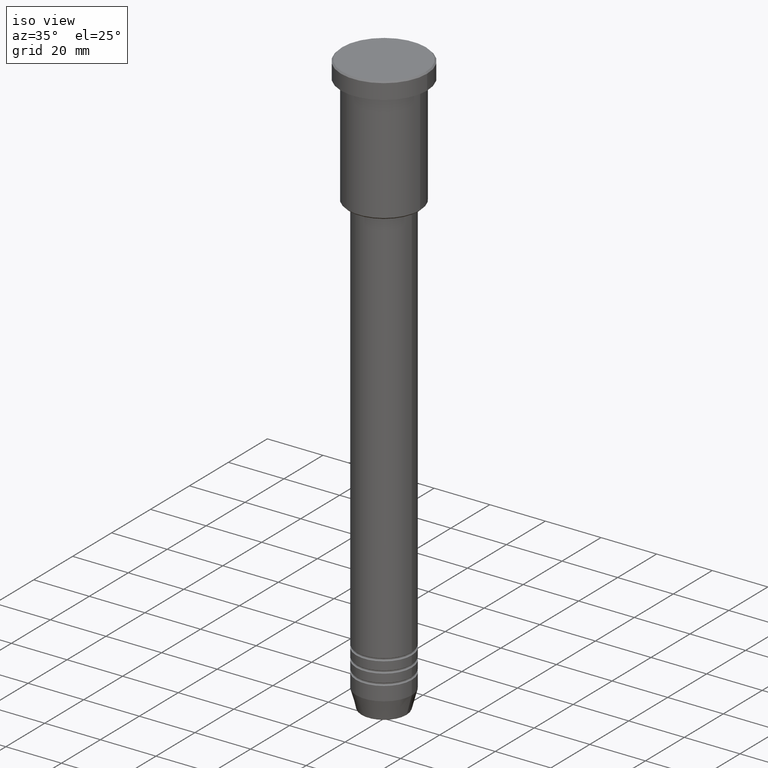
[diagram: clean part render]
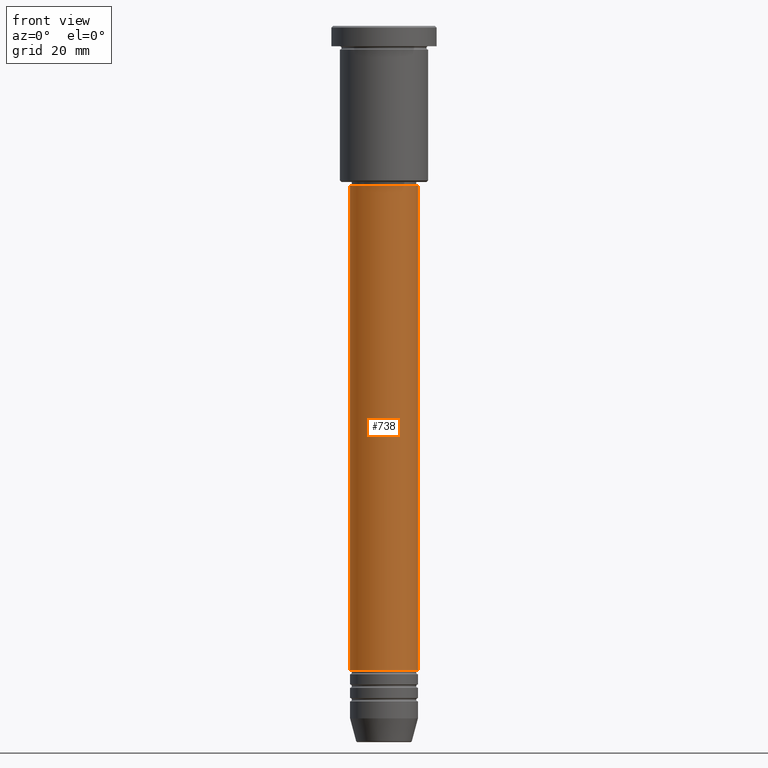
[diagram: tour spotlight — one face highlighted and labeled with its STEP entity id]
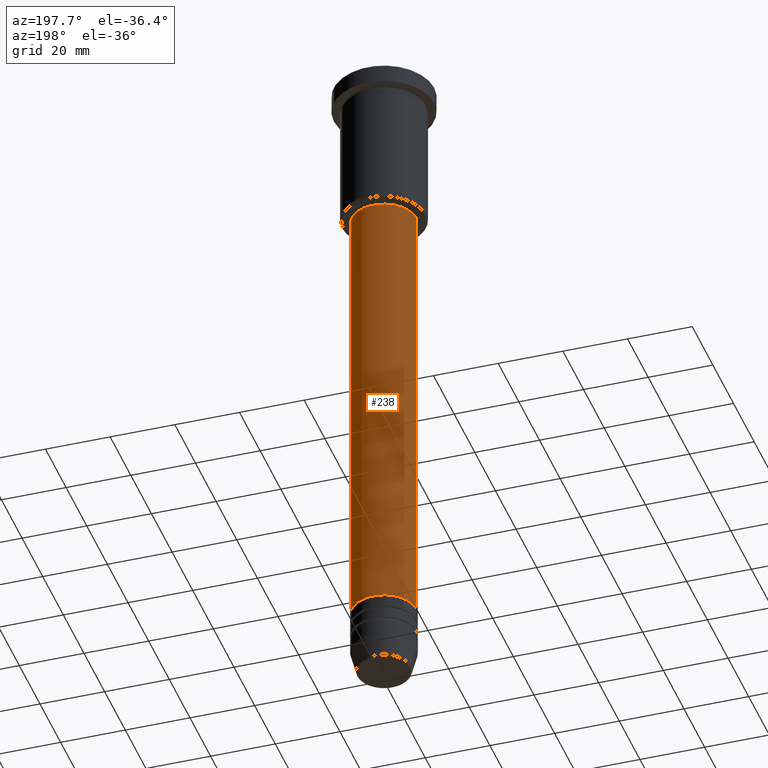
[diagram: tour spotlight — one face highlighted and labeled with its STEP entity id]
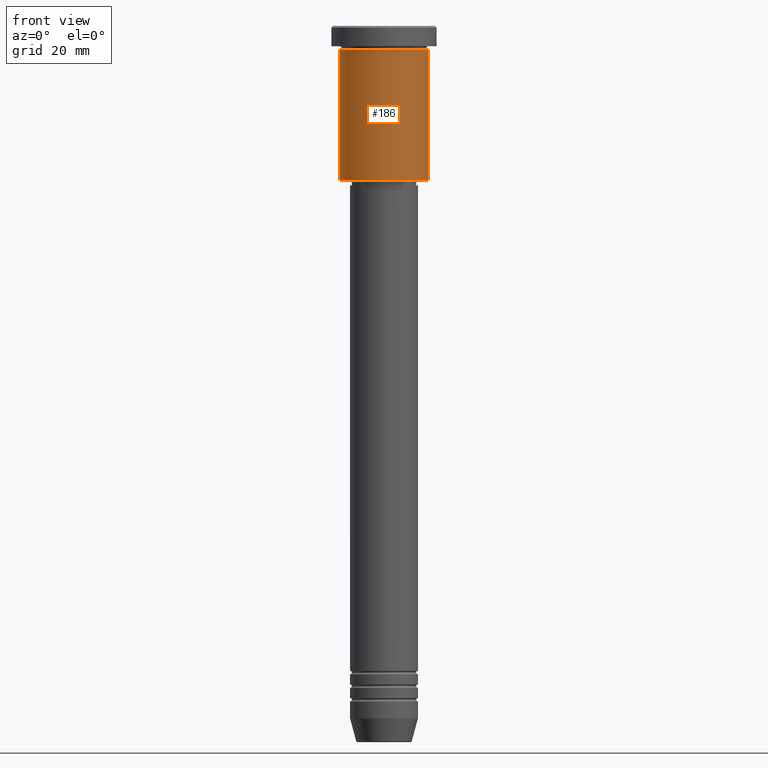
[diagram: tour spotlight — one face highlighted and labeled with its STEP entity id]
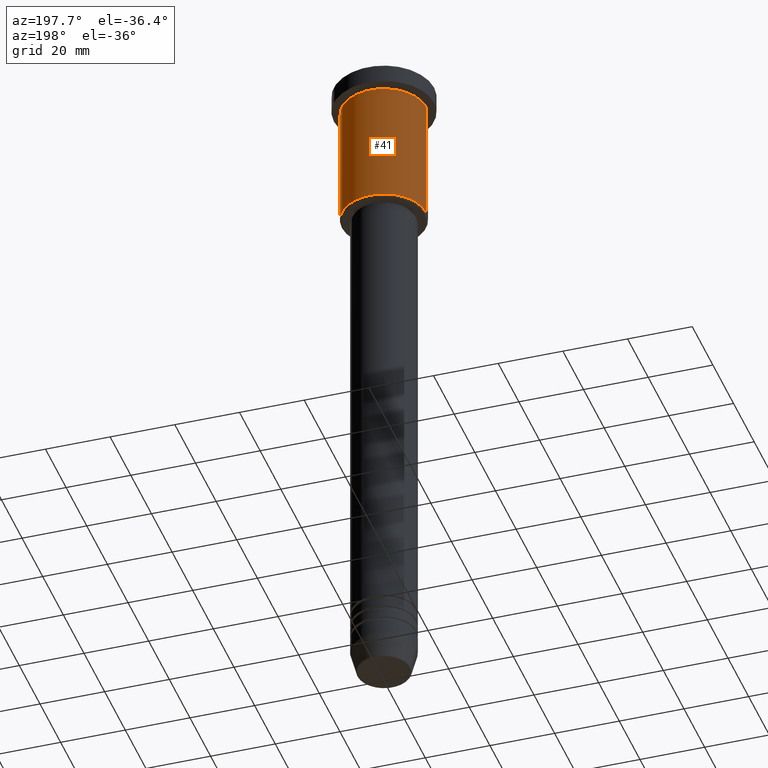
[diagram: tour spotlight — one face highlighted and labeled with its STEP entity id]
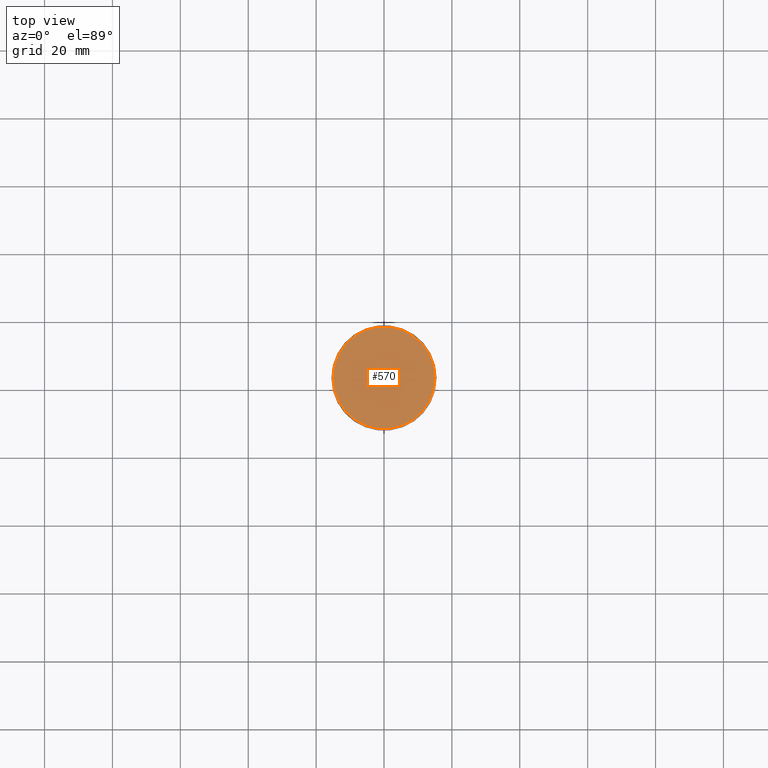
[diagram: tour spotlight — one face highlighted and labeled with its STEP entity id]
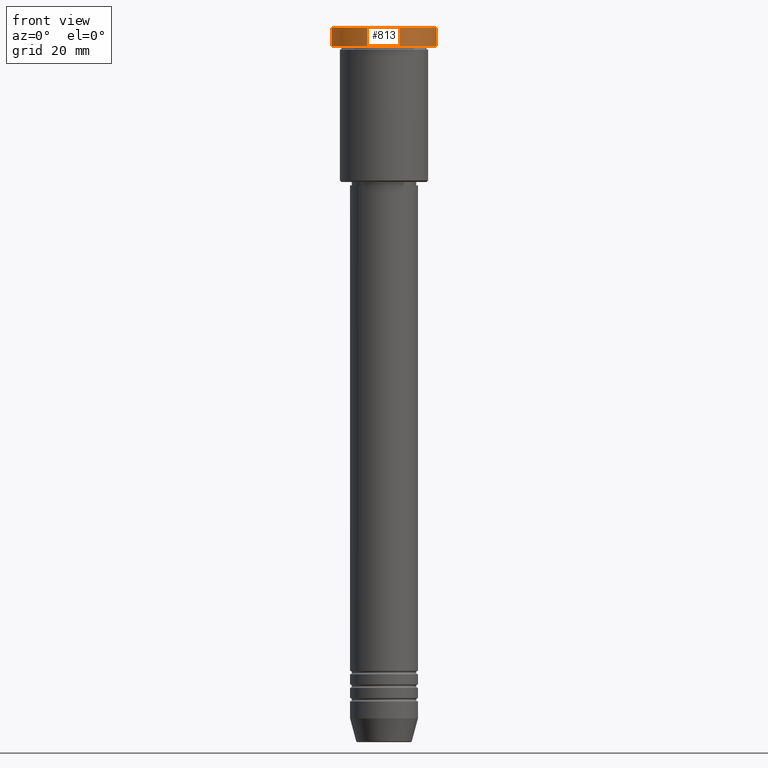
[diagram: tour spotlight — one face highlighted and labeled with its STEP entity id]
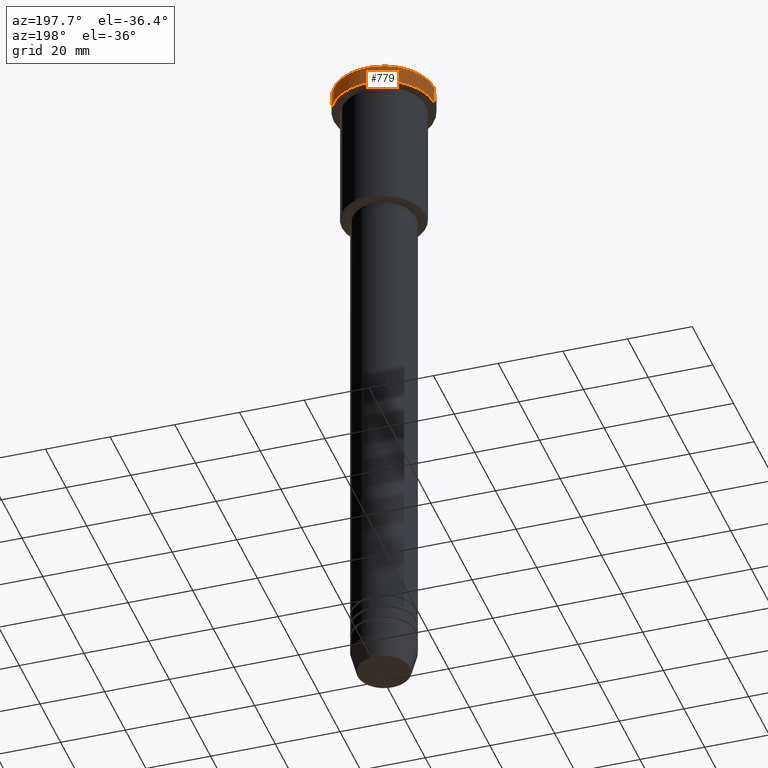
[diagram: tour spotlight — one face highlighted and labeled with its STEP entity id]
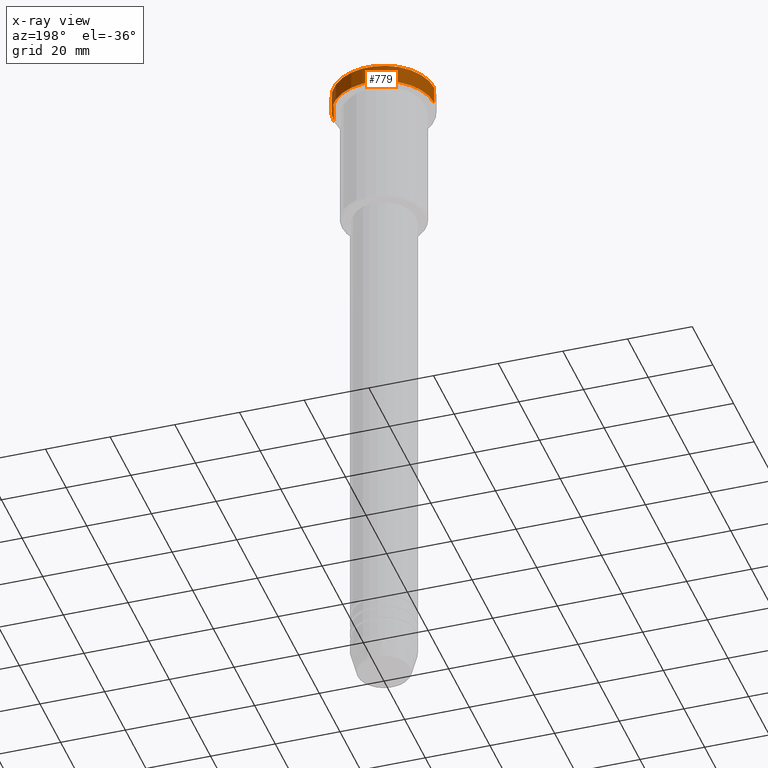
[diagram: x-ray of the same camera — body ghosted, this tour face saturated]
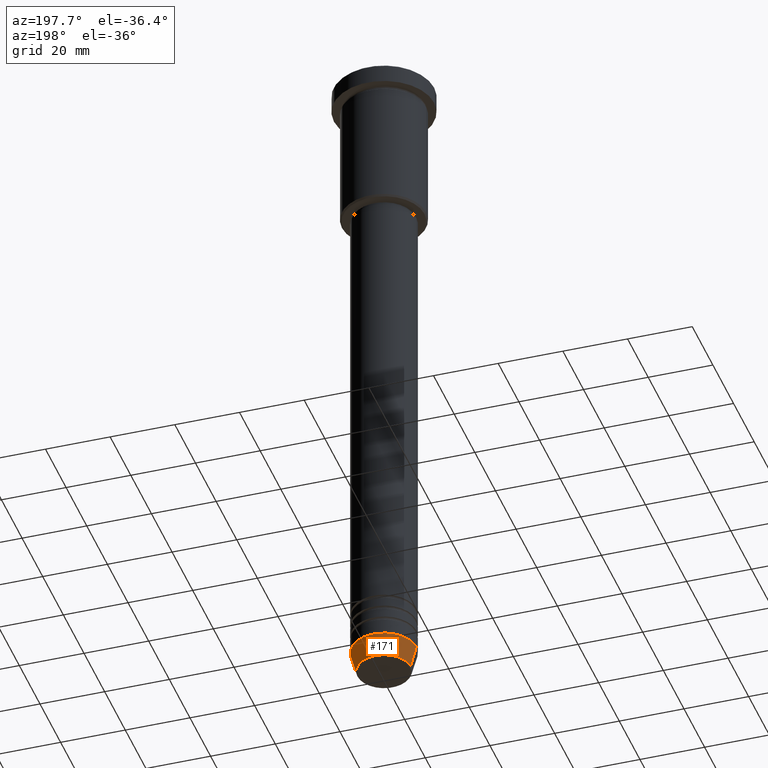
[diagram: tour spotlight — one face highlighted and labeled with its STEP entity id]
A machine part: a face-by-face anatomy tour. The part has 43 B-rep faces; the first image is the clean iso view, then the 8 largest visible faces are spotlighted one at a time (largest first), each with its STEP entity span.

Face 1 — front view, entity #738. In plain terms, the highlighted cylindrical surface (edge-blend (fillet) strip) has radius 10 mm, axis along (-0, -0, 1).
Definition (entity closure, byte-faithful):
#40 = CARTESIAN_POINT ( 'NONE',  ( 0.000000000000000000, 0.000000000000000000, -47.00000000000002132 ) ) ;
#49 = CARTESIAN_POINT ( 'NONE',  ( 10.00000000000000178, 0.000000000000000000, -189.9999999999999147 ) ) ;
#59 = DIRECTION ( 'NONE',  ( -0.000000000000000000, -0.000000000000000000, 1.000000000000000000 ) ) ;
#95 = CARTESIAN_POINT ( 'NONE',  ( 0.000000000000000000, 0.000000000000000000, -189.9999999999999147 ) ) ;
#170 = DIRECTION ( 'NONE',  ( -0.000000000000000000, -0.000000000000000000, 1.000000000000000000 ) ) ;
#319 = DIRECTION ( 'NONE',  ( 1.000000000000000000, 0.000000000000000000, 0.000000000000000000 ) ) ;
#335 = CIRCLE ( 'NONE', #1004, 10.00000000000000178 ) ;
#338 = FACE_OUTER_BOUND ( 'NONE', #889, .T. ) ;
#345 = CYLINDRICAL_SURFACE ( 'NONE', #436, 10.00000000000000000 ) ;
#360 = VERTEX_POINT ( 'NONE', #49 ) ;
#373 = ORIENTED_EDGE ( 'NONE', *, *, #836, .T. ) ;
#436 = AXIS2_PLACEMENT_3D ( 'NONE', #718, #170, #896 ) ;
#453 = ORIENTED_EDGE ( 'NONE', *, *, #1066, .F. ) ;
#506 = EDGE_CURVE ( 'NONE', #1163, #992, #946, .T. ) ;
#525 = DIRECTION ( 'NONE',  ( -0.000000000000000000, -0.000000000000000000, 1.000000000000000000 ) ) ;
#628 = ORIENTED_EDGE ( 'NONE', *, *, #657, .T. ) ;
#632 = DIRECTION ( 'NONE',  ( 1.000000000000000000, 0.000000000000000000, 0.000000000000000000 ) ) ;
#636 = ORIENTED_EDGE ( 'NONE', *, *, #506, .F. ) ;
#657 = EDGE_CURVE ( 'NONE', #797, #360, #335, .T. ) ;
#672 = DIRECTION ( 'NONE',  ( -0.000000000000000000, -0.000000000000000000, 1.000000000000000000 ) ) ;
#678 = CARTESIAN_POINT ( 'NONE',  ( -10.00000000000000178, 1.224646799147353454E-15, -189.9999999999999147 ) ) ;
#718 = CARTESIAN_POINT ( 'NONE',  ( 0.000000000000000000, 0.000000000000000000, 0.000000000000000000 ) ) ;
#738 = ADVANCED_FACE ( 'NONE', ( #338 ), #345, .T. ) ;
#760 = CARTESIAN_POINT ( 'NONE',  ( 10.00000000000000000, 0.000000000000000000, 0.000000000000000000 ) ) ;
#783 = AXIS2_PLACEMENT_3D ( 'NONE', #40, #525, #319 ) ;
#797 = VERTEX_POINT ( 'NONE', #678 ) ;
#804 = CARTESIAN_POINT ( 'NONE',  ( 9.999999999999998224, 0.000000000000000000, -47.00000000000002132 ) ) ;
#836 = EDGE_CURVE ( 'NONE', #360, #992, #1093, .T. ) ;
#889 = EDGE_LOOP ( 'NONE', ( #453, #628, #373, #636 ) ) ;
#896 = DIRECTION ( 'NONE',  ( 1.000000000000000000, 0.000000000000000000, 0.000000000000000000 ) ) ;
#946 = CIRCLE ( 'NONE', #783, 9.999999999999998224 ) ;
#964 = VECTOR ( 'NONE', #672, 1000.000000000000000 ) ;
#972 = CARTESIAN_POINT ( 'NONE',  ( -10.00000000000000000, 1.224646799147353256E-15, 0.000000000000000000 ) ) ;
#992 = VERTEX_POINT ( 'NONE', #804 ) ;
#993 = CARTESIAN_POINT ( 'NONE',  ( -9.999999999999998224, 1.224646799147353256E-15, -47.00000000000002132 ) ) ;
#1004 = AXIS2_PLACEMENT_3D ( 'NONE', #95, #1076, #632 ) ;
#1063 = LINE ( 'NONE', #972, #1134 ) ;
#1066 = EDGE_CURVE ( 'NONE', #797, #1163, #1063, .T. ) ;
#1076 = DIRECTION ( 'NONE',  ( -0.000000000000000000, -0.000000000000000000, 1.000000000000000000 ) ) ;
#1093 = LINE ( 'NONE', #760, #964 ) ;
#1134 = VECTOR ( 'NONE', #59, 1000.000000000000000 ) ;
#1163 = VERTEX_POINT ( 'NONE', #993 ) ;

Face 2 — auxiliary view, entity #238. In plain terms, the highlighted cylindrical surface (edge-blend (fillet) strip) has radius 10 mm, axis along (-0, -0, 1).
Definition (entity closure, byte-faithful):
#27 = CARTESIAN_POINT ( 'NONE',  ( 0.000000000000000000, 0.000000000000000000, 0.000000000000000000 ) ) ;
#49 = CARTESIAN_POINT ( 'NONE',  ( 10.00000000000000178, 0.000000000000000000, -189.9999999999999147 ) ) ;
#59 = DIRECTION ( 'NONE',  ( -0.000000000000000000, -0.000000000000000000, 1.000000000000000000 ) ) ;
#62 = CARTESIAN_POINT ( 'NONE',  ( 0.000000000000000000, 0.000000000000000000, -47.00000000000002132 ) ) ;
#90 = ORIENTED_EDGE ( 'NONE', *, *, #377, .F. ) ;
#194 = DIRECTION ( 'NONE',  ( -0.000000000000000000, -0.000000000000000000, 1.000000000000000000 ) ) ;
#229 = CIRCLE ( 'NONE', #1080, 10.00000000000000178 ) ;
#238 = ADVANCED_FACE ( 'NONE', ( #741 ), #827, .T. ) ;
#251 = ORIENTED_EDGE ( 'NONE', *, *, #836, .F. ) ;
#356 = ORIENTED_EDGE ( 'NONE', *, *, #793, .T. ) ;
#360 = VERTEX_POINT ( 'NONE', #49 ) ;
#377 = EDGE_CURVE ( 'NONE', #992, #1163, #1079, .T. ) ;
#492 = DIRECTION ( 'NONE',  ( 1.000000000000000000, 0.000000000000000000, 0.000000000000000000 ) ) ;
#511 = ORIENTED_EDGE ( 'NONE', *, *, #1066, .T. ) ;
#608 = AXIS2_PLACEMENT_3D ( 'NONE', #62, #1139, #943 ) ;
#672 = DIRECTION ( 'NONE',  ( -0.000000000000000000, -0.000000000000000000, 1.000000000000000000 ) ) ;
#678 = CARTESIAN_POINT ( 'NONE',  ( -10.00000000000000178, 1.224646799147353454E-15, -189.9999999999999147 ) ) ;
#741 = FACE_OUTER_BOUND ( 'NONE', #960, .T. ) ;
#760 = CARTESIAN_POINT ( 'NONE',  ( 10.00000000000000000, 0.000000000000000000, 0.000000000000000000 ) ) ;
#793 = EDGE_CURVE ( 'NONE', #360, #797, #229, .T. ) ;
#797 = VERTEX_POINT ( 'NONE', #678 ) ;
#804 = CARTESIAN_POINT ( 'NONE',  ( 9.999999999999998224, 0.000000000000000000, -47.00000000000002132 ) ) ;
#827 = CYLINDRICAL_SURFACE ( 'NONE', #1078, 10.00000000000000000 ) ;
#836 = EDGE_CURVE ( 'NONE', #360, #992, #1093, .T. ) ;
#924 = DIRECTION ( 'NONE',  ( 1.000000000000000000, 0.000000000000000000, 0.000000000000000000 ) ) ;
#943 = DIRECTION ( 'NONE',  ( 1.000000000000000000, 0.000000000000000000, 0.000000000000000000 ) ) ;
#960 = EDGE_LOOP ( 'NONE', ( #356, #511, #90, #251 ) ) ;
#964 = VECTOR ( 'NONE', #672, 1000.000000000000000 ) ;
#972 = CARTESIAN_POINT ( 'NONE',  ( -10.00000000000000000, 1.224646799147353256E-15, 0.000000000000000000 ) ) ;
#992 = VERTEX_POINT ( 'NONE', #804 ) ;
#993 = CARTESIAN_POINT ( 'NONE',  ( -9.999999999999998224, 1.224646799147353256E-15, -47.00000000000002132 ) ) ;
#1000 = CARTESIAN_POINT ( 'NONE',  ( 0.000000000000000000, 0.000000000000000000, -189.9999999999999147 ) ) ;
#1010 = DIRECTION ( 'NONE',  ( -0.000000000000000000, -0.000000000000000000, 1.000000000000000000 ) ) ;
#1063 = LINE ( 'NONE', #972, #1134 ) ;
#1066 = EDGE_CURVE ( 'NONE', #797, #1163, #1063, .T. ) ;
#1078 = AXIS2_PLACEMENT_3D ( 'NONE', #27, #1010, #924 ) ;
#1079 = CIRCLE ( 'NONE', #608, 9.999999999999998224 ) ;
#1080 = AXIS2_PLACEMENT_3D ( 'NONE', #1000, #194, #492 ) ;
#1093 = LINE ( 'NONE', #760, #964 ) ;
#1134 = VECTOR ( 'NONE', #59, 1000.000000000000000 ) ;
#1139 = DIRECTION ( 'NONE',  ( -0.000000000000000000, -0.000000000000000000, 1.000000000000000000 ) ) ;
#1163 = VERTEX_POINT ( 'NONE', #993 ) ;

Face 3 — front view, entity #186. In plain terms, the highlighted cylindrical surface (partial cylindrical patch) has radius 13 mm, axis along (-0, -0, 1).
Definition (entity closure, byte-faithful):
#11 = CIRCLE ( 'NONE', #576, 13.00000000000000178 ) ;
#63 = EDGE_CURVE ( 'NONE', #493, #643, #259, .T. ) ;
#70 = ORIENTED_EDGE ( 'NONE', *, *, #63, .F. ) ;
#83 = CARTESIAN_POINT ( 'NONE',  ( 13.00000000000000178, 0.000000000000000000, -45.49999999999997868 ) ) ;
#186 = ADVANCED_FACE ( 'NONE', ( #928 ), #667, .T. ) ;
#192 = VERTEX_POINT ( 'NONE', #396 ) ;
#204 = EDGE_CURVE ( 'NONE', #493, #1028, #211, .T. ) ;
#211 = CIRCLE ( 'NONE', #1056, 13.00000000000000178 ) ;
#259 = LINE ( 'NONE', #734, #1146 ) ;
#273 = DIRECTION ( 'NONE',  ( 1.000000000000000000, 0.000000000000000000, 0.000000000000000000 ) ) ;
#276 = EDGE_CURVE ( 'NONE', #643, #192, #11, .T. ) ;
#296 = AXIS2_PLACEMENT_3D ( 'NONE', #484, #580, #273 ) ;
#329 = CARTESIAN_POINT ( 'NONE',  ( -13.00000000000000178, 1.592040838891559293E-15, -45.49999999999997868 ) ) ;
#396 = CARTESIAN_POINT ( 'NONE',  ( 13.00000000000000178, 0.000000000000000000, -6.999999999999995559 ) ) ;
#454 = DIRECTION ( 'NONE',  ( -0.000000000000000000, -0.000000000000000000, 1.000000000000000000 ) ) ;
#474 = DIRECTION ( 'NONE',  ( -1.000000000000000000, 0.000000000000000000, 0.000000000000000000 ) ) ;
#484 = CARTESIAN_POINT ( 'NONE',  ( 0.000000000000000000, 0.000000000000000000, 0.000000000000000000 ) ) ;
#490 = ORIENTED_EDGE ( 'NONE', *, *, #1077, .T. ) ;
#493 = VERTEX_POINT ( 'NONE', #329 ) ;
#576 = AXIS2_PLACEMENT_3D ( 'NONE', #1013, #662, #1100 ) ;
#580 = DIRECTION ( 'NONE',  ( -0.000000000000000000, -0.000000000000000000, 1.000000000000000000 ) ) ;
#603 = ORIENTED_EDGE ( 'NONE', *, *, #276, .F. ) ;
#643 = VERTEX_POINT ( 'NONE', #902 ) ;
#650 = DIRECTION ( 'NONE',  ( -0.000000000000000000, -0.000000000000000000, 1.000000000000000000 ) ) ;
#662 = DIRECTION ( 'NONE',  ( -0.000000000000000000, -0.000000000000000000, 1.000000000000000000 ) ) ;
#667 = CYLINDRICAL_SURFACE ( 'NONE', #296, 13.00000000000000178 ) ;
#732 = ORIENTED_EDGE ( 'NONE', *, *, #204, .T. ) ;
#734 = CARTESIAN_POINT ( 'NONE',  ( -13.00000000000000178, 1.592040838891559293E-15, 0.000000000000000000 ) ) ;
#737 = CARTESIAN_POINT ( 'NONE',  ( 0.000000000000000000, 0.000000000000000000, -45.49999999999997868 ) ) ;
#811 = EDGE_LOOP ( 'NONE', ( #70, #732, #490, #603 ) ) ;
#859 = VECTOR ( 'NONE', #878, 1000.000000000000000 ) ;
#878 = DIRECTION ( 'NONE',  ( -0.000000000000000000, -0.000000000000000000, 1.000000000000000000 ) ) ;
#902 = CARTESIAN_POINT ( 'NONE',  ( -13.00000000000000178, 1.592040838891559293E-15, -6.999999999999995559 ) ) ;
#928 = FACE_OUTER_BOUND ( 'NONE', #811, .T. ) ;
#978 = CARTESIAN_POINT ( 'NONE',  ( 13.00000000000000178, 0.000000000000000000, 0.000000000000000000 ) ) ;
#1013 = CARTESIAN_POINT ( 'NONE',  ( 0.000000000000000000, 0.000000000000000000, -6.999999999999995559 ) ) ;
#1028 = VERTEX_POINT ( 'NONE', #83 ) ;
#1056 = AXIS2_PLACEMENT_3D ( 'NONE', #737, #650, #474 ) ;
#1077 = EDGE_CURVE ( 'NONE', #1028, #192, #1161, .T. ) ;
#1100 = DIRECTION ( 'NONE',  ( 1.000000000000000000, 0.000000000000000000, 0.000000000000000000 ) ) ;
#1146 = VECTOR ( 'NONE', #454, 1000.000000000000000 ) ;
#1161 = LINE ( 'NONE', #978, #859 ) ;

Face 4 — auxiliary view, entity #41. In plain terms, the highlighted cylindrical surface (partial cylindrical patch) has radius 13 mm, axis along (-0, -0, 1).
Definition (entity closure, byte-faithful):
#41 = ADVANCED_FACE ( 'NONE', ( #881 ), #446, .T. ) ;
#63 = EDGE_CURVE ( 'NONE', #493, #643, #259, .T. ) ;
#83 = CARTESIAN_POINT ( 'NONE',  ( 13.00000000000000178, 0.000000000000000000, -45.49999999999997868 ) ) ;
#87 = DIRECTION ( 'NONE',  ( -0.000000000000000000, -0.000000000000000000, 1.000000000000000000 ) ) ;
#119 = CIRCLE ( 'NONE', #581, 13.00000000000000178 ) ;
#192 = VERTEX_POINT ( 'NONE', #396 ) ;
#213 = DIRECTION ( 'NONE',  ( -1.000000000000000000, 0.000000000000000000, 0.000000000000000000 ) ) ;
#220 = CARTESIAN_POINT ( 'NONE',  ( 0.000000000000000000, 0.000000000000000000, -45.49999999999997868 ) ) ;
#231 = CIRCLE ( 'NONE', #950, 13.00000000000000178 ) ;
#259 = LINE ( 'NONE', #734, #1146 ) ;
#305 = ORIENTED_EDGE ( 'NONE', *, *, #1158, .T. ) ;
#329 = CARTESIAN_POINT ( 'NONE',  ( -13.00000000000000178, 1.592040838891559293E-15, -45.49999999999997868 ) ) ;
#372 = DIRECTION ( 'NONE',  ( -0.000000000000000000, -0.000000000000000000, 1.000000000000000000 ) ) ;
#386 = ORIENTED_EDGE ( 'NONE', *, *, #1048, .F. ) ;
#392 = AXIS2_PLACEMENT_3D ( 'NONE', #1091, #372, #641 ) ;
#396 = CARTESIAN_POINT ( 'NONE',  ( 13.00000000000000178, 0.000000000000000000, -6.999999999999995559 ) ) ;
#443 = DIRECTION ( 'NONE',  ( 1.000000000000000000, 0.000000000000000000, 0.000000000000000000 ) ) ;
#446 = CYLINDRICAL_SURFACE ( 'NONE', #392, 13.00000000000000178 ) ;
#454 = DIRECTION ( 'NONE',  ( -0.000000000000000000, -0.000000000000000000, 1.000000000000000000 ) ) ;
#493 = VERTEX_POINT ( 'NONE', #329 ) ;
#572 = ORIENTED_EDGE ( 'NONE', *, *, #1077, .F. ) ;
#581 = AXIS2_PLACEMENT_3D ( 'NONE', #1069, #87, #443 ) ;
#641 = DIRECTION ( 'NONE',  ( 1.000000000000000000, 0.000000000000000000, 0.000000000000000000 ) ) ;
#643 = VERTEX_POINT ( 'NONE', #902 ) ;
#734 = CARTESIAN_POINT ( 'NONE',  ( -13.00000000000000178, 1.592040838891559293E-15, 0.000000000000000000 ) ) ;
#775 = DIRECTION ( 'NONE',  ( -0.000000000000000000, -0.000000000000000000, 1.000000000000000000 ) ) ;
#843 = ORIENTED_EDGE ( 'NONE', *, *, #63, .T. ) ;
#859 = VECTOR ( 'NONE', #878, 1000.000000000000000 ) ;
#878 = DIRECTION ( 'NONE',  ( -0.000000000000000000, -0.000000000000000000, 1.000000000000000000 ) ) ;
#881 = FACE_OUTER_BOUND ( 'NONE', #1157, .T. ) ;
#902 = CARTESIAN_POINT ( 'NONE',  ( -13.00000000000000178, 1.592040838891559293E-15, -6.999999999999995559 ) ) ;
#950 = AXIS2_PLACEMENT_3D ( 'NONE', #220, #775, #213 ) ;
#978 = CARTESIAN_POINT ( 'NONE',  ( 13.00000000000000178, 0.000000000000000000, 0.000000000000000000 ) ) ;
#1028 = VERTEX_POINT ( 'NONE', #83 ) ;
#1048 = EDGE_CURVE ( 'NONE', #192, #643, #119, .T. ) ;
#1069 = CARTESIAN_POINT ( 'NONE',  ( 0.000000000000000000, 0.000000000000000000, -6.999999999999995559 ) ) ;
#1077 = EDGE_CURVE ( 'NONE', #1028, #192, #1161, .T. ) ;
#1091 = CARTESIAN_POINT ( 'NONE',  ( 0.000000000000000000, 0.000000000000000000, 0.000000000000000000 ) ) ;
#1146 = VECTOR ( 'NONE', #454, 1000.000000000000000 ) ;
#1157 = EDGE_LOOP ( 'NONE', ( #305, #843, #386, #572 ) ) ;
#1158 = EDGE_CURVE ( 'NONE', #1028, #493, #231, .T. ) ;
#1161 = LINE ( 'NONE', #978, #859 ) ;

Face 5 — top view, entity #570. In plain terms, the highlighted planar face has unit normal (0, -0, 1).
Definition (entity closure, byte-faithful):
#84 = CARTESIAN_POINT ( 'NONE',  ( 0.000000000000000000, 0.000000000000000000, 0.000000000000000000 ) ) ;
#172 = AXIS2_PLACEMENT_3D ( 'NONE', #833, #762, #206 ) ;
#205 = ORIENTED_EDGE ( 'NONE', *, *, #1073, .T. ) ;
#206 = DIRECTION ( 'NONE',  ( 1.000000000000000000, 0.000000000000000000, 0.000000000000000000 ) ) ;
#215 = EDGE_CURVE ( 'NONE', #507, #1015, #872, .T. ) ;
#252 = CARTESIAN_POINT ( 'NONE',  ( 0.000000000000000000, 0.000000000000000000, 0.000000000000000000 ) ) ;
#253 = PLANE ( 'NONE',  #1038 ) ;
#270 = DIRECTION ( 'NONE',  ( 1.000000000000000000, 0.000000000000000000, 0.000000000000000000 ) ) ;
#427 = CARTESIAN_POINT ( 'NONE',  ( -15.00000000000001421, 0.000000000000000000, 0.000000000000000000 ) ) ;
#444 = DIRECTION ( 'NONE',  ( 1.000000000000000000, 0.000000000000000000, 0.000000000000000000 ) ) ;
#507 = VERTEX_POINT ( 'NONE', #696 ) ;
#539 = DIRECTION ( 'NONE',  ( 0.000000000000000000, -0.000000000000000000, 1.000000000000000000 ) ) ;
#563 = EDGE_LOOP ( 'NONE', ( #205, #715 ) ) ;
#570 = ADVANCED_FACE ( 'NONE', ( #1064 ), #253, .T. ) ;
#619 = DIRECTION ( 'NONE',  ( -0.000000000000000000, -0.000000000000000000, 1.000000000000000000 ) ) ;
#674 = CIRCLE ( 'NONE', #786, 15.00000000000001421 ) ;
#696 = CARTESIAN_POINT ( 'NONE',  ( 15.00000000000001421, 1.867586368699714559E-15, 0.000000000000000000 ) ) ;
#715 = ORIENTED_EDGE ( 'NONE', *, *, #215, .T. ) ;
#762 = DIRECTION ( 'NONE',  ( -0.000000000000000000, -0.000000000000000000, 1.000000000000000000 ) ) ;
#786 = AXIS2_PLACEMENT_3D ( 'NONE', #252, #619, #270 ) ;
#833 = CARTESIAN_POINT ( 'NONE',  ( 0.000000000000000000, 0.000000000000000000, 0.000000000000000000 ) ) ;
#872 = CIRCLE ( 'NONE', #172, 15.00000000000001421 ) ;
#1015 = VERTEX_POINT ( 'NONE', #427 ) ;
#1038 = AXIS2_PLACEMENT_3D ( 'NONE', #84, #539, #444 ) ;
#1064 = FACE_OUTER_BOUND ( 'NONE', #563, .T. ) ;
#1073 = EDGE_CURVE ( 'NONE', #1015, #507, #674, .T. ) ;

Face 6 — front view, entity #813. In plain terms, the highlighted cylindrical surface (partial cylindrical patch) has radius 15.5 mm, axis along (-0, -0, 1).
Definition (entity closure, byte-faithful):
#3 = LINE ( 'NONE', #655, #1174 ) ;
#13 = AXIS2_PLACEMENT_3D ( 'NONE', #1172, #362, #735 ) ;
#73 = EDGE_CURVE ( 'NONE', #1143, #816, #942, .T. ) ;
#97 = DIRECTION ( 'NONE',  ( 1.000000000000000000, 0.000000000000000000, 0.000000000000000000 ) ) ;
#101 = AXIS2_PLACEMENT_3D ( 'NONE', #284, #1014, #387 ) ;
#103 = CARTESIAN_POINT ( 'NONE',  ( 15.50000000000000000, 0.000000000000000000, -0.4999999999999848455 ) ) ;
#147 = DIRECTION ( 'NONE',  ( -0.000000000000000000, -0.000000000000000000, 1.000000000000000000 ) ) ;
#182 = VERTEX_POINT ( 'NONE', #573 ) ;
#255 = EDGE_LOOP ( 'NONE', ( #922, #478, #824, #1047 ) ) ;
#284 = CARTESIAN_POINT ( 'NONE',  ( 0.000000000000000000, 0.000000000000000000, -5.999999999999995559 ) ) ;
#362 = DIRECTION ( 'NONE',  ( -0.000000000000000000, -0.000000000000000000, 1.000000000000000000 ) ) ;
#376 = VECTOR ( 'NONE', #147, 1000.000000000000000 ) ;
#387 = DIRECTION ( 'NONE',  ( 1.000000000000000000, 0.000000000000000000, 0.000000000000000000 ) ) ;
#478 = ORIENTED_EDGE ( 'NONE', *, *, #756, .T. ) ;
#532 = VERTEX_POINT ( 'NONE', #866 ) ;
#543 = CYLINDRICAL_SURFACE ( 'NONE', #13, 15.50000000000000000 ) ;
#552 = CARTESIAN_POINT ( 'NONE',  ( 0.000000000000000000, 0.000000000000000000, -0.4999999999999848455 ) ) ;
#573 = CARTESIAN_POINT ( 'NONE',  ( -15.50000000000000000, 1.898202538678397557E-15, -5.999999999999995559 ) ) ;
#591 = CARTESIAN_POINT ( 'NONE',  ( 15.50000000000000000, 0.000000000000000000, 0.000000000000000000 ) ) ;
#616 = CARTESIAN_POINT ( 'NONE',  ( -15.50000000000000000, 1.898202538678397557E-15, -0.4999999999999848455 ) ) ;
#622 = FACE_OUTER_BOUND ( 'NONE', #255, .T. ) ;
#631 = CIRCLE ( 'NONE', #101, 15.50000000000000000 ) ;
#655 = CARTESIAN_POINT ( 'NONE',  ( -15.50000000000000000, 1.898202538678397557E-15, 0.000000000000000000 ) ) ;
#682 = LINE ( 'NONE', #591, #376 ) ;
#688 = AXIS2_PLACEMENT_3D ( 'NONE', #552, #830, #97 ) ;
#735 = DIRECTION ( 'NONE',  ( 1.000000000000000000, 0.000000000000000000, 0.000000000000000000 ) ) ;
#749 = EDGE_CURVE ( 'NONE', #182, #816, #3, .T. ) ;
#756 = EDGE_CURVE ( 'NONE', #182, #532, #631, .T. ) ;
#813 = ADVANCED_FACE ( 'NONE', ( #622 ), #543, .T. ) ;
#816 = VERTEX_POINT ( 'NONE', #616 ) ;
#824 = ORIENTED_EDGE ( 'NONE', *, *, #910, .T. ) ;
#825 = DIRECTION ( 'NONE',  ( -0.000000000000000000, -0.000000000000000000, 1.000000000000000000 ) ) ;
#830 = DIRECTION ( 'NONE',  ( 0.000000000000000000, 0.000000000000000000, -1.000000000000000000 ) ) ;
#866 = CARTESIAN_POINT ( 'NONE',  ( 15.50000000000000000, 0.000000000000000000, -5.999999999999995559 ) ) ;
#910 = EDGE_CURVE ( 'NONE', #532, #1143, #682, .T. ) ;
#922 = ORIENTED_EDGE ( 'NONE', *, *, #749, .F. ) ;
#942 = CIRCLE ( 'NONE', #688, 15.50000000000000000 ) ;
#1014 = DIRECTION ( 'NONE',  ( -0.000000000000000000, -0.000000000000000000, 1.000000000000000000 ) ) ;
#1047 = ORIENTED_EDGE ( 'NONE', *, *, #73, .T. ) ;
#1143 = VERTEX_POINT ( 'NONE', #103 ) ;
#1172 = CARTESIAN_POINT ( 'NONE',  ( 0.000000000000000000, 0.000000000000000000, 0.000000000000000000 ) ) ;
#1174 = VECTOR ( 'NONE', #825, 1000.000000000000000 ) ;

Face 7 — auxiliary view, entity #779. An x-ray twin of the same camera follows (body ghosted, this face saturated) — the face is partly hidden behind the body. In plain terms, the highlighted cylindrical surface (partial cylindrical patch) has radius 15.5 mm, axis along (-0, -0, 1).
Definition (entity closure, byte-faithful):
#3 = LINE ( 'NONE', #655, #1174 ) ;
#5 = EDGE_LOOP ( 'NONE', ( #216, #771, #424, #759 ) ) ;
#103 = CARTESIAN_POINT ( 'NONE',  ( 15.50000000000000000, 0.000000000000000000, -0.4999999999999848455 ) ) ;
#147 = DIRECTION ( 'NONE',  ( -0.000000000000000000, -0.000000000000000000, 1.000000000000000000 ) ) ;
#151 = CARTESIAN_POINT ( 'NONE',  ( 0.000000000000000000, 0.000000000000000000, -5.999999999999995559 ) ) ;
#158 = DIRECTION ( 'NONE',  ( 0.000000000000000000, 0.000000000000000000, -1.000000000000000000 ) ) ;
#165 = DIRECTION ( 'NONE',  ( 1.000000000000000000, 0.000000000000000000, 0.000000000000000000 ) ) ;
#182 = VERTEX_POINT ( 'NONE', #573 ) ;
#216 = ORIENTED_EDGE ( 'NONE', *, *, #996, .T. ) ;
#376 = VECTOR ( 'NONE', #147, 1000.000000000000000 ) ;
#424 = ORIENTED_EDGE ( 'NONE', *, *, #1017, .T. ) ;
#435 = DIRECTION ( 'NONE',  ( 1.000000000000000000, 0.000000000000000000, 0.000000000000000000 ) ) ;
#498 = CIRCLE ( 'NONE', #561, 15.50000000000000000 ) ;
#517 = AXIS2_PLACEMENT_3D ( 'NONE', #968, #158, #435 ) ;
#532 = VERTEX_POINT ( 'NONE', #866 ) ;
#561 = AXIS2_PLACEMENT_3D ( 'NONE', #151, #987, #165 ) ;
#573 = CARTESIAN_POINT ( 'NONE',  ( -15.50000000000000000, 1.898202538678397557E-15, -5.999999999999995559 ) ) ;
#591 = CARTESIAN_POINT ( 'NONE',  ( 15.50000000000000000, 0.000000000000000000, 0.000000000000000000 ) ) ;
#616 = CARTESIAN_POINT ( 'NONE',  ( -15.50000000000000000, 1.898202538678397557E-15, -0.4999999999999848455 ) ) ;
#646 = DIRECTION ( 'NONE',  ( 1.000000000000000000, 0.000000000000000000, 0.000000000000000000 ) ) ;
#655 = CARTESIAN_POINT ( 'NONE',  ( -15.50000000000000000, 1.898202538678397557E-15, 0.000000000000000000 ) ) ;
#665 = CYLINDRICAL_SURFACE ( 'NONE', #1099, 15.50000000000000000 ) ;
#682 = LINE ( 'NONE', #591, #376 ) ;
#749 = EDGE_CURVE ( 'NONE', #182, #816, #3, .T. ) ;
#759 = ORIENTED_EDGE ( 'NONE', *, *, #910, .F. ) ;
#771 = ORIENTED_EDGE ( 'NONE', *, *, #749, .T. ) ;
#779 = ADVANCED_FACE ( 'NONE', ( #1180 ), #665, .T. ) ;
#816 = VERTEX_POINT ( 'NONE', #616 ) ;
#825 = DIRECTION ( 'NONE',  ( -0.000000000000000000, -0.000000000000000000, 1.000000000000000000 ) ) ;
#866 = CARTESIAN_POINT ( 'NONE',  ( 15.50000000000000000, 0.000000000000000000, -5.999999999999995559 ) ) ;
#910 = EDGE_CURVE ( 'NONE', #532, #1143, #682, .T. ) ;
#934 = CARTESIAN_POINT ( 'NONE',  ( 0.000000000000000000, 0.000000000000000000, 0.000000000000000000 ) ) ;
#968 = CARTESIAN_POINT ( 'NONE',  ( 0.000000000000000000, 0.000000000000000000, -0.4999999999999848455 ) ) ;
#987 = DIRECTION ( 'NONE',  ( -0.000000000000000000, -0.000000000000000000, 1.000000000000000000 ) ) ;
#996 = EDGE_CURVE ( 'NONE', #532, #182, #498, .T. ) ;
#1017 = EDGE_CURVE ( 'NONE', #816, #1143, #1024, .T. ) ;
#1024 = CIRCLE ( 'NONE', #517, 15.50000000000000000 ) ;
#1089 = DIRECTION ( 'NONE',  ( -0.000000000000000000, -0.000000000000000000, 1.000000000000000000 ) ) ;
#1099 = AXIS2_PLACEMENT_3D ( 'NONE', #934, #1089, #646 ) ;
#1143 = VERTEX_POINT ( 'NONE', #103 ) ;
#1174 = VECTOR ( 'NONE', #825, 1000.000000000000000 ) ;
#1180 = FACE_OUTER_BOUND ( 'NONE', #5, .T. ) ;

Face 8 — auxiliary view, entity #171. In plain terms, the highlighted conical surface has half-angle 15 deg.
Definition (entity closure, byte-faithful):
#105 = VERTEX_POINT ( 'NONE', #645 ) ;
#112 = EDGE_CURVE ( 'NONE', #442, #624, #944, .T. ) ;
#125 = DIRECTION ( 'NONE',  ( -0.000000000000000000, -0.000000000000000000, 1.000000000000000000 ) ) ;
#137 = EDGE_CURVE ( 'NONE', #654, #442, #389, .T. ) ;
#171 = ADVANCED_FACE ( 'NONE', ( #753 ), #670, .T. ) ;
#187 = ORIENTED_EDGE ( 'NONE', *, *, #137, .F. ) ;
#227 = EDGE_CURVE ( 'NONE', #105, #624, #1105, .T. ) ;
#263 = CARTESIAN_POINT ( 'NONE',  ( 0.000000000000000000, 0.000000000000000000, -210.6294095225512990 ) ) ;
#267 = CIRCLE ( 'NONE', #673, 8.223655072137185940 ) ;
#289 = CARTESIAN_POINT ( 'NONE',  ( 10.00000000000000000, 0.000000000000000000, -204.0000000000000284 ) ) ;
#389 = LINE ( 'NONE', #289, #627 ) ;
#402 = DIRECTION ( 'NONE',  ( -0.000000000000000000, -0.000000000000000000, 1.000000000000000000 ) ) ;
#423 = CARTESIAN_POINT ( 'NONE',  ( 10.00000000000000000, 0.000000000000000000, -204.0000000000000284 ) ) ;
#442 = VERTEX_POINT ( 'NONE', #423 ) ;
#452 = DIRECTION ( 'NONE',  ( -0.000000000000000000, -0.000000000000000000, 1.000000000000000000 ) ) ;
#496 = AXIS2_PLACEMENT_3D ( 'NONE', #584, #125, #571 ) ;
#571 = DIRECTION ( 'NONE',  ( 1.000000000000000000, 0.000000000000000000, 0.000000000000000000 ) ) ;
#575 = DIRECTION ( 'NONE',  ( 0.2588190451025210725, 0.000000000000000000, 0.9659258262890680902 ) ) ;
#583 = CARTESIAN_POINT ( 'NONE',  ( -10.00000000000000000, 1.224646799147353256E-15, -204.0000000000000284 ) ) ;
#584 = CARTESIAN_POINT ( 'NONE',  ( 0.000000000000000000, 0.000000000000000000, -204.0000000000000284 ) ) ;
#624 = VERTEX_POINT ( 'NONE', #998 ) ;
#627 = VECTOR ( 'NONE', #575, 1000.000000000000114 ) ;
#635 = ORIENTED_EDGE ( 'NONE', *, *, #677, .T. ) ;
#645 = CARTESIAN_POINT ( 'NONE',  ( -8.223655072137185940, 1.115877042642911659E-15, -210.6294095225512990 ) ) ;
#654 = VERTEX_POINT ( 'NONE', #724 ) ;
#664 = DIRECTION ( 'NONE',  ( 1.000000000000000000, 0.000000000000000000, 0.000000000000000000 ) ) ;
#670 = CONICAL_SURFACE ( 'NONE', #496, 10.00000000000000000, 0.2617993877991497964 ) ;
#673 = AXIS2_PLACEMENT_3D ( 'NONE', #263, #452, #733 ) ;
#677 = EDGE_CURVE ( 'NONE', #654, #105, #267, .T. ) ;
#724 = CARTESIAN_POINT ( 'NONE',  ( 8.223655072137185940, 0.000000000000000000, -210.6294095225512990 ) ) ;
#733 = DIRECTION ( 'NONE',  ( 1.000000000000000000, 0.000000000000000000, 0.000000000000000000 ) ) ;
#750 = ORIENTED_EDGE ( 'NONE', *, *, #112, .F. ) ;
#753 = FACE_OUTER_BOUND ( 'NONE', #985, .T. ) ;
#839 = VECTOR ( 'NONE', #849, 1000.000000000000114 ) ;
#849 = DIRECTION ( 'NONE',  ( -0.2588190451025210725, 3.169619151431769255E-17, 0.9659258262890680902 ) ) ;
#915 = CARTESIAN_POINT ( 'NONE',  ( 0.000000000000000000, 0.000000000000000000, -204.0000000000000284 ) ) ;
#944 = CIRCLE ( 'NONE', #1129, 10.00000000000000000 ) ;
#985 = EDGE_LOOP ( 'NONE', ( #635, #1109, #750, #187 ) ) ;
#998 = CARTESIAN_POINT ( 'NONE',  ( -10.00000000000000000, 1.224646799147353256E-15, -204.0000000000000284 ) ) ;
#1105 = LINE ( 'NONE', #583, #839 ) ;
#1109 = ORIENTED_EDGE ( 'NONE', *, *, #227, .T. ) ;
#1129 = AXIS2_PLACEMENT_3D ( 'NONE', #915, #402, #664 ) ;